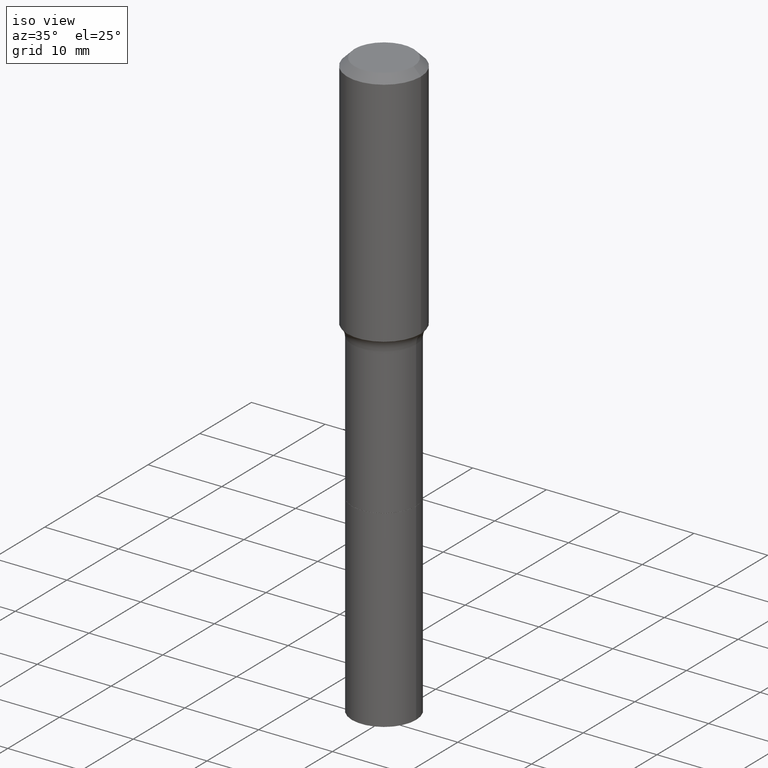
[diagram: clean part render]
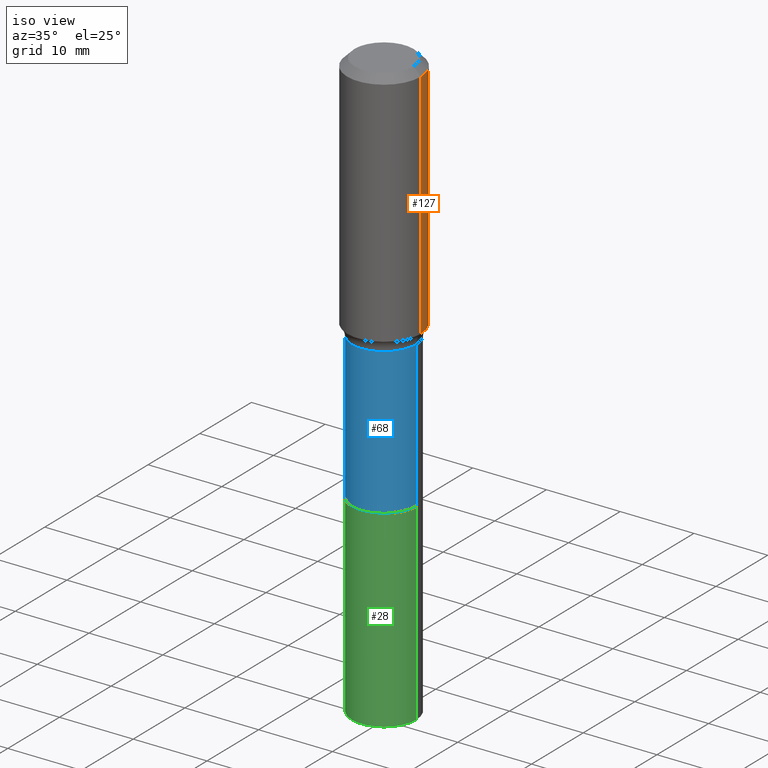
[diagram: same view with three faces highlighted in distinct colors, each labeled with its STEP entity id]
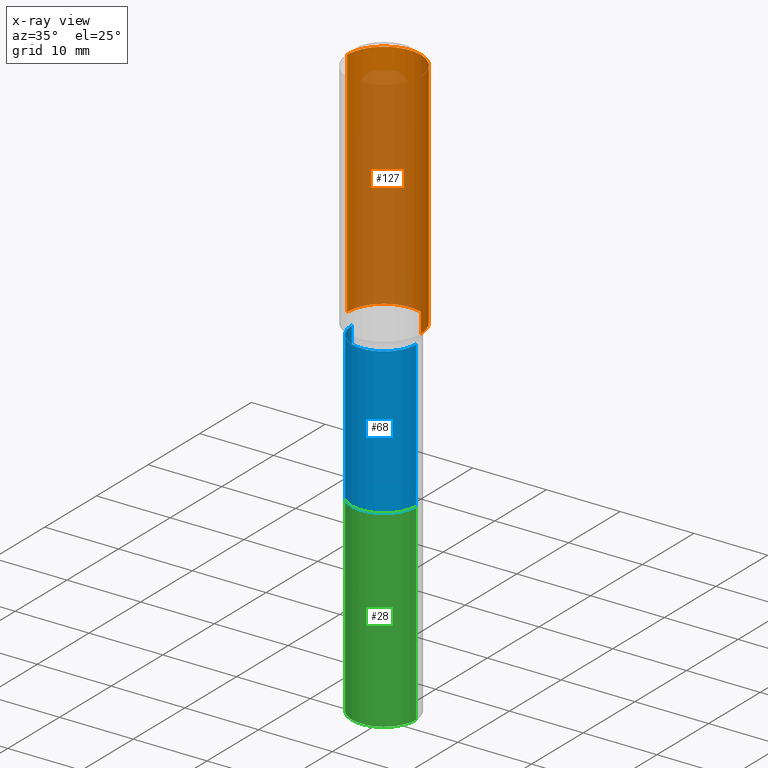
[diagram: x-ray of the same camera — body ghosted, the three highlighted faces saturated]
A machine part, iso view with three faces highlighted in distinct colors.
The next image is the same camera in x-ray (body ghosted, the three faces saturated) — at least one of them is partly hidden behind the body in this view.
Their STEP definitions:

[orange] entity #127 — the highlighted cylindrical surface (partial cylindrical patch) has radius 5 mm, axis along (-0, 0, 1).
#4 = VECTOR ( 'NONE', #469, 39.37007874015748143 ) ;
#20 = CYLINDRICAL_SURFACE ( 'NONE', #101, 0.1968500000000001082 ) ;
#26 = CARTESIAN_POINT ( 'NONE',  ( 3.129306309250937286E-29, -4.467820057503775175E-15, -1.279634522974172794 ) ) ;
#30 = ORIENTED_EDGE ( 'NONE', *, *, #429, .T. ) ;
#42 = CARTESIAN_POINT ( 'NONE',  ( -0.1968500000000001082, 1.398703375343757985E-15, -9.682923725166787881E-30 ) ) ;
#61 = DIRECTION ( 'NONE',  ( -2.445468806185136597E-29, 3.491481338843145583E-15, 1.000000000000000000 ) ) ;
#101 = AXIS2_PLACEMENT_3D ( 'NONE', #491, #497, #409 ) ;
#104 = VERTEX_POINT ( 'NONE', #338 ) ;
#116 = CARTESIAN_POINT ( 'NONE',  ( 9.627810689950955906E-31, -1.374596203102556794E-16, -0.03937000000000030059 ) ) ;
#122 = DIRECTION ( 'NONE',  ( -2.445468806185136597E-29, 3.491481338843145583E-15, 1.000000000000000000 ) ) ;
#125 = CARTESIAN_POINT ( 'NONE',  ( 0.1968500000000000527, -1.512055823412797583E-15, -0.03937000000000030059 ) ) ;
#127 = ADVANCED_FACE ( 'NONE', ( #300 ), #20, .T. ) ;
#145 = ORIENTED_EDGE ( 'NONE', *, *, #493, .F. ) ;
#158 = CARTESIAN_POINT ( 'NONE',  ( -0.1968500000000000527, -9.039364635632571956E-16, -0.03937000000000030059 ) ) ;
#163 = AXIS2_PLACEMENT_3D ( 'NONE', #116, #122, #438 ) ;
#169 = CIRCLE ( 'NONE', #163, 0.1968500000000000527 ) ;
#181 = ORIENTED_EDGE ( 'NONE', *, *, #396, .F. ) ;
#198 = LINE ( 'NONE', #42, #199 ) ;
#199 = VECTOR ( 'NONE', #517, 39.37007874015748143 ) ;
#237 = LINE ( 'NONE', #319, #4 ) ;
#242 = CIRCLE ( 'NONE', #345, 0.1968500000000001915 ) ;
#253 = EDGE_CURVE ( 'NONE', #104, #386, #242, .T. ) ;
#260 = DIRECTION ( 'NONE',  ( 1.000000000000000000, -6.982962677686266711E-15, 0.000000000000000000 ) ) ;
#267 = ORIENTED_EDGE ( 'NONE', *, *, #253, .T. ) ;
#300 = FACE_OUTER_BOUND ( 'NONE', #307, .T. ) ;
#307 = EDGE_LOOP ( 'NONE', ( #267, #30, #181, #145 ) ) ;
#319 = CARTESIAN_POINT ( 'NONE',  ( 0.1968500000000001082, -1.374596203102542397E-15, 9.598753983154305062E-30 ) ) ;
#337 = CARTESIAN_POINT ( 'NONE',  ( -0.1968500000000001915, -3.069116682160016598E-15, -1.279634522974172794 ) ) ;
#338 = CARTESIAN_POINT ( 'NONE',  ( 0.1968500000000001915, -5.842416260606316783E-15, -1.279634522974172794 ) ) ;
#345 = AXIS2_PLACEMENT_3D ( 'NONE', #26, #61, #260 ) ;
#386 = VERTEX_POINT ( 'NONE', #337 ) ;
#394 = VERTEX_POINT ( 'NONE', #158 ) ;
#396 = EDGE_CURVE ( 'NONE', #405, #394, #169, .T. ) ;
#405 = VERTEX_POINT ( 'NONE', #125 ) ;
#409 = DIRECTION ( 'NONE',  ( 1.000000000000000000, -6.982962677686266711E-15, 4.876176775795935793E-29 ) ) ;
#429 = EDGE_CURVE ( 'NONE', #386, #394, #198, .T. ) ;
#438 = DIRECTION ( 'NONE',  ( 1.000000000000000000, -6.982962677686266711E-15, 0.000000000000000000 ) ) ;
#469 = DIRECTION ( 'NONE',  ( -2.445468806185136877E-29, 3.491481338843145188E-15, 1.000000000000000000 ) ) ;
#491 = CARTESIAN_POINT ( 'NONE',  ( 0.000000000000000000, 0.000000000000000000, 0.000000000000000000 ) ) ;
#493 = EDGE_CURVE ( 'NONE', #104, #405, #237, .T. ) ;
#497 = DIRECTION ( 'NONE',  ( -2.445468806185136597E-29, 3.491481338843145583E-15, 1.000000000000000000 ) ) ;
#517 = DIRECTION ( 'NONE',  ( -2.445468806185136877E-29, 3.491481338843145188E-15, 1.000000000000000000 ) ) ;

[blue] entity #68 — the highlighted cylindrical surface (partial cylindrical patch) has radius 4.3497 mm, axis along (-0, 0, 1).
#10 = VECTOR ( 'NONE', #87, 39.37007874015748143 ) ;
#17 = CYLINDRICAL_SURFACE ( 'NONE', #35, 0.1712499999999999856 ) ;
#27 = EDGE_LOOP ( 'NONE', ( #510, #459, #431, #506 ) ) ;
#34 = DIRECTION ( 'NONE',  ( -2.445468806185136597E-29, 3.491481338843145583E-15, 1.000000000000000000 ) ) ;
#35 = AXIS2_PLACEMENT_3D ( 'NONE', #372, #56, #215 ) ;
#56 = DIRECTION ( 'NONE',  ( -2.445468806185136597E-29, 3.491481338843145583E-15, 1.000000000000000000 ) ) ;
#64 = EDGE_CURVE ( 'NONE', #320, #346, #349, .T. ) ;
#68 = ADVANCED_FACE ( 'NONE', ( #415 ), #17, .T. ) ;
#74 = CARTESIAN_POINT ( 'NONE',  ( -0.1712499999999999856, 1.216804434989171466E-15, -8.423676342061525262E-30 ) ) ;
#87 = DIRECTION ( 'NONE',  ( -2.445468806185136877E-29, 3.491481338843145188E-15, 1.000000000000000000 ) ) ;
#93 = CARTESIAN_POINT ( 'NONE',  ( 0.1712499999999999856, -1.195832358553773135E-15, 8.350452728550539064E-30 ) ) ;
#154 = LINE ( 'NONE', #74, #10 ) ;
#160 = EDGE_CURVE ( 'NONE', #346, #467, #298, .T. ) ;
#189 = DIRECTION ( 'NONE',  ( 1.000000000000000000, -6.982962677686266711E-15, 0.000000000000000000 ) ) ;
#215 = DIRECTION ( 'NONE',  ( 1.000000000000000000, -6.982962677686266711E-15, 4.876176775795935793E-29 ) ) ;
#279 = CIRCLE ( 'NONE', #495, 0.1712499999999999023 ) ;
#280 = CARTESIAN_POINT ( 'NONE',  ( 0.1712499999999999023, -5.869529278729208069E-15, -1.338600000000000234 ) ) ;
#298 = LINE ( 'NONE', #93, #360 ) ;
#320 = VERTEX_POINT ( 'NONE', #422 ) ;
#336 = DIRECTION ( 'NONE',  ( 1.000000000000000000, -6.982962677686267499E-15, 0.000000000000000000 ) ) ;
#346 = VERTEX_POINT ( 'NONE', #379 ) ;
#349 = CIRCLE ( 'NONE', #485, 0.1712500000000000411 ) ;
#354 = VERTEX_POINT ( 'NONE', #462 ) ;
#360 = VECTOR ( 'NONE', #378, 39.37007874015748143 ) ;
#372 = CARTESIAN_POINT ( 'NONE',  ( 0.000000000000000000, 0.000000000000000000, 0.000000000000000000 ) ) ;
#378 = DIRECTION ( 'NONE',  ( -2.445468806185136877E-29, 3.491481338843145188E-15, 1.000000000000000000 ) ) ;
#379 = CARTESIAN_POINT ( 'NONE',  ( 0.1712500000000000411, -8.591138982357440995E-15, -2.118100000000000094 ) ) ;
#401 = CARTESIAN_POINT ( 'NONE',  ( 3.273504543959424474E-29, -4.673696920175435525E-15, -1.338600000000000234 ) ) ;
#407 = DIRECTION ( 'NONE',  ( -2.445468806185136597E-29, 3.491481338843145583E-15, 1.000000000000000000 ) ) ;
#413 = CARTESIAN_POINT ( 'NONE',  ( 5.179747478380738195E-29, -7.395306623803667663E-15, -2.118100000000000094 ) ) ;
#415 = FACE_OUTER_BOUND ( 'NONE', #27, .T. ) ;
#422 = CARTESIAN_POINT ( 'NONE',  ( -0.1712500000000000411, -4.817697337000379142E-15, -2.118100000000000094 ) ) ;
#431 = ORIENTED_EDGE ( 'NONE', *, *, #160, .T. ) ;
#458 = EDGE_CURVE ( 'NONE', #320, #354, #154, .T. ) ;
#459 = ORIENTED_EDGE ( 'NONE', *, *, #64, .T. ) ;
#462 = CARTESIAN_POINT ( 'NONE',  ( -0.1712499999999999023, -4.817697337000379931E-15, -1.338600000000000234 ) ) ;
#467 = VERTEX_POINT ( 'NONE', #280 ) ;
#476 = EDGE_CURVE ( 'NONE', #354, #467, #279, .T. ) ;
#485 = AXIS2_PLACEMENT_3D ( 'NONE', #413, #407, #336 ) ;
#495 = AXIS2_PLACEMENT_3D ( 'NONE', #401, #34, #189 ) ;
#506 = ORIENTED_EDGE ( 'NONE', *, *, #476, .F. ) ;
#510 = ORIENTED_EDGE ( 'NONE', *, *, #458, .F. ) ;

[green] entity #28 — the highlighted cylindrical surface (partial cylindrical patch) has radius 4.3498 mm, axis along (-0, 0, 1).
#5 = CARTESIAN_POINT ( 'NONE',  ( 7.702248551960706711E-29, -1.099676962482037231E-14, -3.149600000000000399 ) ) ;
#9 = CARTESIAN_POINT ( 'NONE',  ( 0.1712500000000001243, -8.592884723026863288E-15, -2.118600000000000261 ) ) ;
#28 = ADVANCED_FACE ( 'NONE', ( #130 ), #356, .T. ) ;
#53 = CARTESIAN_POINT ( 'NONE',  ( -0.1712500000000000133, -7.980106559657557892E-15, -2.118600000000000261 ) ) ;
#76 = DIRECTION ( 'NONE',  ( -2.445468806185136597E-29, 3.491481338843145583E-15, 1.000000000000000000 ) ) ;
#83 = DIRECTION ( 'NONE',  ( 1.000000000000000000, -6.982962677686265133E-15, 0.000000000000000000 ) ) ;
#103 = CARTESIAN_POINT ( 'NONE',  ( 5.180970212783830997E-29, -7.397052364473088378E-15, -2.118600000000000261 ) ) ;
#106 = EDGE_CURVE ( 'NONE', #436, #119, #171, .T. ) ;
#119 = VERTEX_POINT ( 'NONE', #292 ) ;
#124 = VERTEX_POINT ( 'NONE', #177 ) ;
#130 = FACE_OUTER_BOUND ( 'NONE', #353, .T. ) ;
#139 = DIRECTION ( 'NONE',  ( -2.445468806185136877E-29, 3.491481338843145188E-15, 1.000000000000000000 ) ) ;
#171 = LINE ( 'NONE', #9, #268 ) ;
#177 = CARTESIAN_POINT ( 'NONE',  ( -0.1712500000000002354, -7.980106559657554736E-15, -3.149600000000000399 ) ) ;
#179 = ORIENTED_EDGE ( 'NONE', *, *, #106, .T. ) ;
#186 = ORIENTED_EDGE ( 'NONE', *, *, #453, .T. ) ;
#233 = VERTEX_POINT ( 'NONE', #53 ) ;
#234 = CIRCLE ( 'NONE', #316, 0.1712500000000000133 ) ;
#268 = VECTOR ( 'NONE', #139, 39.37007874015748143 ) ;
#276 = CARTESIAN_POINT ( 'NONE',  ( -0.1712500000000001243, -6.180247929483916715E-15, -2.118600000000000261 ) ) ;
#290 = DIRECTION ( 'NONE',  ( -2.445468806185136597E-29, 3.491481338843145583E-15, 1.000000000000000000 ) ) ;
#292 = CARTESIAN_POINT ( 'NONE',  ( 0.1712500000000000133, -8.592884723026861710E-15, -2.118600000000000261 ) ) ;
#316 = AXIS2_PLACEMENT_3D ( 'NONE', #103, #420, #390 ) ;
#321 = DIRECTION ( 'NONE',  ( -2.445468806185136877E-29, 3.491481338843145188E-15, 1.000000000000000000 ) ) ;
#322 = CARTESIAN_POINT ( 'NONE',  ( 5.180970212783830997E-29, -7.397052364473088378E-15, -2.118600000000000261 ) ) ;
#347 = EDGE_CURVE ( 'NONE', #233, #119, #234, .T. ) ;
#353 = EDGE_LOOP ( 'NONE', ( #421, #186, #179, #473 ) ) ;
#355 = LINE ( 'NONE', #276, #377 ) ;
#356 = CYLINDRICAL_SURFACE ( 'NONE', #398, 0.1712500000000001243 ) ;
#377 = VECTOR ( 'NONE', #321, 39.37007874015748143 ) ;
#390 = DIRECTION ( 'NONE',  ( 1.000000000000000000, -6.982962677686268288E-15, 0.000000000000000000 ) ) ;
#398 = AXIS2_PLACEMENT_3D ( 'NONE', #322, #290, #443 ) ;
#399 = CARTESIAN_POINT ( 'NONE',  ( 0.1712500000000002354, -1.219260198337414722E-14, -3.149600000000000399 ) ) ;
#420 = DIRECTION ( 'NONE',  ( -2.445468806185136597E-29, 3.491481338843145583E-15, 1.000000000000000000 ) ) ;
#421 = ORIENTED_EDGE ( 'NONE', *, *, #483, .F. ) ;
#436 = VERTEX_POINT ( 'NONE', #399 ) ;
#443 = DIRECTION ( 'NONE',  ( 1.000000000000000000, -6.982962677686269077E-15, 0.000000000000000000 ) ) ;
#453 = EDGE_CURVE ( 'NONE', #124, #436, #456, .T. ) ;
#456 = CIRCLE ( 'NONE', #514, 0.1712500000000002354 ) ;
#473 = ORIENTED_EDGE ( 'NONE', *, *, #347, .F. ) ;
#483 = EDGE_CURVE ( 'NONE', #124, #233, #355, .T. ) ;
#514 = AXIS2_PLACEMENT_3D ( 'NONE', #5, #76, #83 ) ;